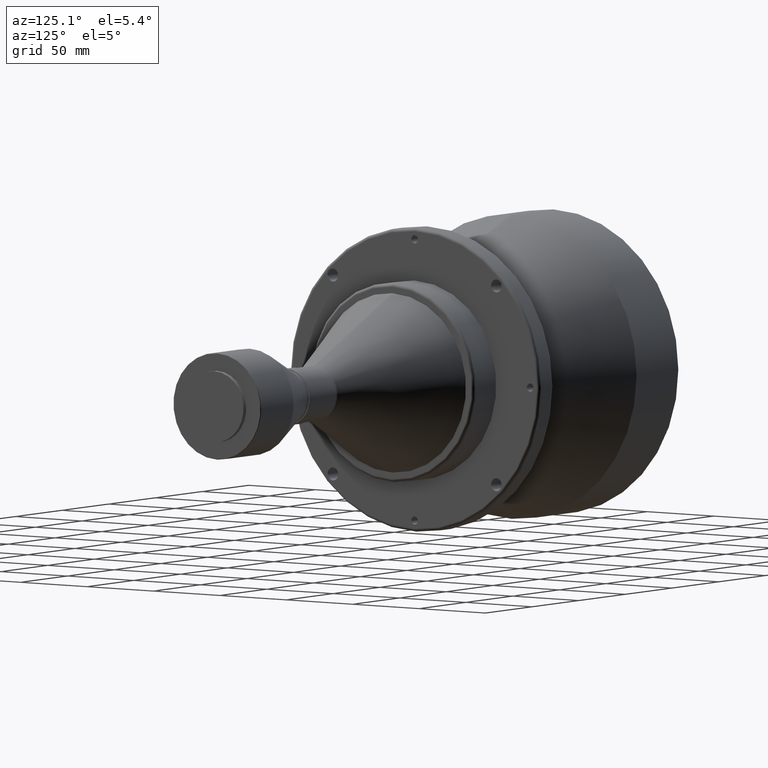
[diagram: clean part render]
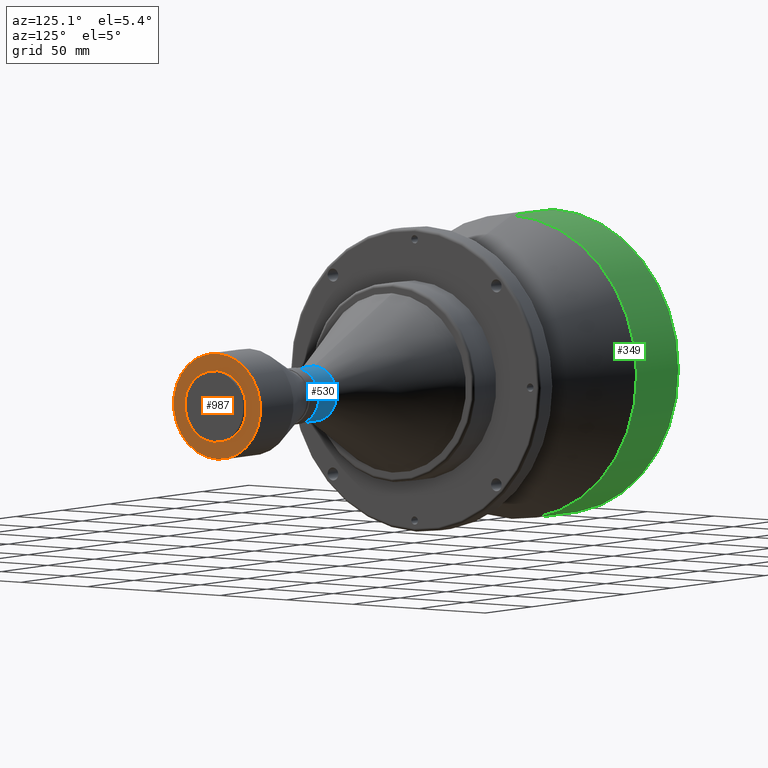
[diagram: same view with three faces highlighted in distinct colors, each labeled with its STEP entity id]
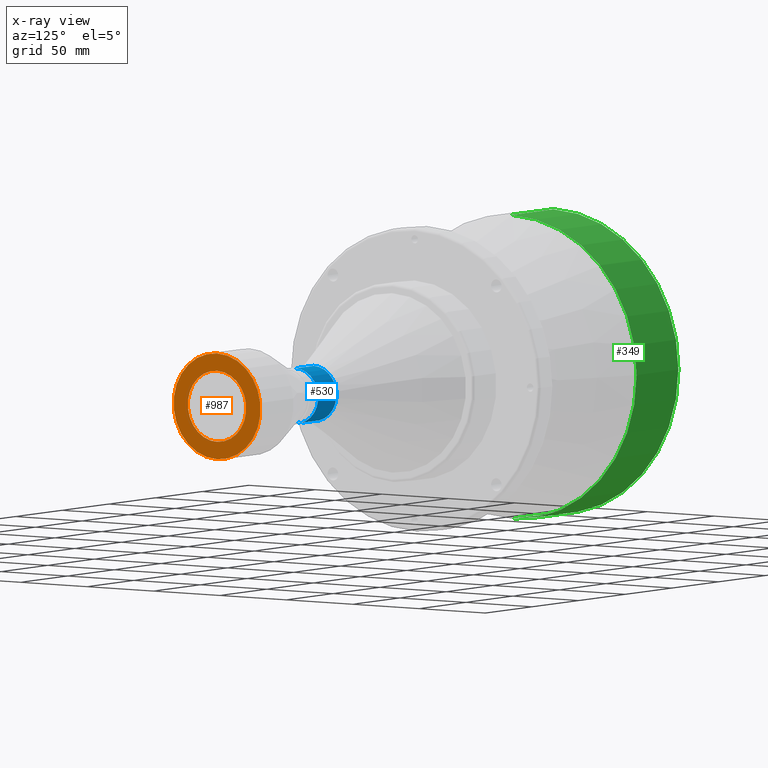
[diagram: x-ray of the same camera — body ghosted, the three highlighted faces saturated]
A machine part, auxiliary view with three faces highlighted in distinct colors.
The next image is the same camera in x-ray (body ghosted, the three faces saturated) — at least one of them is partly hidden behind the body in this view.
Their STEP definitions:

[orange] entity #987 — the highlighted planar face has unit normal (-1, 0, -0).
#36 = AXIS2_PLACEMENT_3D ( 'NONE', #1846, #1444, #583 ) ;
#62 = FACE_BOUND ( 'NONE', #481, .T. ) ;
#69 = AXIS2_PLACEMENT_3D ( 'NONE', #1262, #1828, #1822 ) ;
#100 = DIRECTION ( 'NONE',  ( -1.000000000000000000, -0.0000000000000000000, -0.0000000000000000000 ) ) ;
#102 = AXIS2_PLACEMENT_3D ( 'NONE', #251, #100, #1682 ) ;
#220 = CIRCLE ( 'NONE', #36, 22.00000000000000000 ) ;
#251 = CARTESIAN_POINT ( 'NONE',  ( 360.6999999999999900, 0.0000000000000000000, 0.0000000000000000000 ) ) ;
#364 = EDGE_LOOP ( 'NONE', ( #1723, #1151 ) ) ;
#459 = AXIS2_PLACEMENT_3D ( 'NONE', #1559, #1568, #684 ) ;
#481 = EDGE_LOOP ( 'NONE', ( #817, #1077 ) ) ;
#531 = AXIS2_PLACEMENT_3D ( 'NONE', #1816, #1252, #668 ) ;
#550 = CARTESIAN_POINT ( 'NONE',  ( 360.6999999999999900, 4.022964735199055000E-015, -32.70000000000000300 ) ) ;
#560 = PLANE ( 'NONE',  #459 ) ;
#569 = CARTESIAN_POINT ( 'NONE',  ( 360.6999999999999900, 0.0000000000000000000, 32.70000000000000300 ) ) ;
#583 = DIRECTION ( 'NONE',  ( 0.0000000000000000000, 0.0000000000000000000, 1.000000000000000000 ) ) ;
#591 = EDGE_CURVE ( 'NONE', #992, #1201, #945, .T. ) ;
#631 = FACE_OUTER_BOUND ( 'NONE', #364, .T. ) ;
#668 = DIRECTION ( 'NONE',  ( 0.0000000000000000000, 0.0000000000000000000, 1.000000000000000000 ) ) ;
#684 = DIRECTION ( 'NONE',  ( -0.0000000000000000000, 0.0000000000000000000, 1.000000000000000000 ) ) ;
#739 = CIRCLE ( 'NONE', #531, 32.70000000000000300 ) ;
#772 = VERTEX_POINT ( 'NONE', #1189 ) ;
#817 = ORIENTED_EDGE ( 'NONE', *, *, #1308, .T. ) ;
#913 = CIRCLE ( 'NONE', #69, 22.00000000000000000 ) ;
#945 = CIRCLE ( 'NONE', #102, 32.70000000000000300 ) ;
#987 = ADVANCED_FACE ( 'NONE', ( #631, #62 ), #560, .F. ) ;
#992 = VERTEX_POINT ( 'NONE', #550 ) ;
#1077 = ORIENTED_EDGE ( 'NONE', *, *, #1179, .T. ) ;
#1151 = ORIENTED_EDGE ( 'NONE', *, *, #591, .F. ) ;
#1179 = EDGE_CURVE ( 'NONE', #772, #1413, #220, .T. ) ;
#1189 = CARTESIAN_POINT ( 'NONE',  ( 360.6999999999999900, 2.694222958124176800E-015, -22.00000000000000000 ) ) ;
#1201 = VERTEX_POINT ( 'NONE', #569 ) ;
#1252 = DIRECTION ( 'NONE',  ( -1.000000000000000000, -0.0000000000000000000, -0.0000000000000000000 ) ) ;
#1262 = CARTESIAN_POINT ( 'NONE',  ( 360.6999999999999900, 0.0000000000000000000, 0.0000000000000000000 ) ) ;
#1308 = EDGE_CURVE ( 'NONE', #1413, #772, #913, .T. ) ;
#1413 = VERTEX_POINT ( 'NONE', #1447 ) ;
#1444 = DIRECTION ( 'NONE',  ( -1.000000000000000000, -0.0000000000000000000, -0.0000000000000000000 ) ) ;
#1447 = CARTESIAN_POINT ( 'NONE',  ( 360.6999999999999900, 0.0000000000000000000, 22.00000000000000000 ) ) ;
#1559 = CARTESIAN_POINT ( 'NONE',  ( 360.6999999999999900, 32.70000000000000300, 0.0000000000000000000 ) ) ;
#1568 = DIRECTION ( 'NONE',  ( -1.000000000000000000, 0.0000000000000000000, -0.0000000000000000000 ) ) ;
#1682 = DIRECTION ( 'NONE',  ( 0.0000000000000000000, 0.0000000000000000000, 1.000000000000000000 ) ) ;
#1723 = ORIENTED_EDGE ( 'NONE', *, *, #1747, .F. ) ;
#1747 = EDGE_CURVE ( 'NONE', #1201, #992, #739, .T. ) ;
#1816 = CARTESIAN_POINT ( 'NONE',  ( 360.6999999999999900, 0.0000000000000000000, 0.0000000000000000000 ) ) ;
#1822 = DIRECTION ( 'NONE',  ( 0.0000000000000000000, 0.0000000000000000000, 1.000000000000000000 ) ) ;
#1828 = DIRECTION ( 'NONE',  ( -1.000000000000000000, -0.0000000000000000000, -0.0000000000000000000 ) ) ;
#1846 = CARTESIAN_POINT ( 'NONE',  ( 360.6999999999999900, 0.0000000000000000000, 0.0000000000000000000 ) ) ;

[blue] entity #530 — the highlighted cylindrical surface (edge-blend (fillet) strip) has radius 17 mm, axis along (-1, -0, -0).
#190 = CARTESIAN_POINT ( 'NONE',  ( 276.4999999999999400, 0.0000000000000000000, 17.00000000000000000 ) ) ;
#210 = DIRECTION ( 'NONE',  ( -1.000000000000000000, -0.0000000000000000000, -0.0000000000000000000 ) ) ;
#255 = DIRECTION ( 'NONE',  ( -1.000000000000000000, -0.0000000000000000000, -0.0000000000000000000 ) ) ;
#379 = LINE ( 'NONE', #1346, #1466 ) ;
#380 = CARTESIAN_POINT ( 'NONE',  ( -15.38440440350833200, 0.0000000000000000000, 0.0000000000000000000 ) ) ;
#395 = EDGE_CURVE ( 'NONE', #1488, #482, #379, .T. ) ;
#397 = AXIS2_PLACEMENT_3D ( 'NONE', #380, #689, #1701 ) ;
#405 = CARTESIAN_POINT ( 'NONE',  ( 256.9388755880296500, 0.0000000000000000000, 0.0000000000000000000 ) ) ;
#466 = CIRCLE ( 'NONE', #1268, 17.00000000000000000 ) ;
#482 = VERTEX_POINT ( 'NONE', #1365 ) ;
#506 = AXIS2_PLACEMENT_3D ( 'NONE', #405, #255, #1556 ) ;
#530 = ADVANCED_FACE ( 'NONE', ( #1283 ), #813, .T. ) ;
#626 = ORIENTED_EDGE ( 'NONE', *, *, #1218, .F. ) ;
#689 = DIRECTION ( 'NONE',  ( -1.000000000000000000, -0.0000000000000000000, -0.0000000000000000000 ) ) ;
#704 = CARTESIAN_POINT ( 'NONE',  ( 276.4999999999999400, 2.081899558550500700E-015, -17.00000000000000000 ) ) ;
#725 = VERTEX_POINT ( 'NONE', #1172 ) ;
#740 = EDGE_CURVE ( 'NONE', #1652, #1488, #466, .T. ) ;
#742 = DIRECTION ( 'NONE',  ( 0.0000000000000000000, 0.0000000000000000000, 1.000000000000000000 ) ) ;
#765 = CARTESIAN_POINT ( 'NONE',  ( 276.4999999999999400, 0.0000000000000000000, 0.0000000000000000000 ) ) ;
#813 = CYLINDRICAL_SURFACE ( 'NONE', #397, 17.00000000000000400 ) ;
#860 = EDGE_LOOP ( 'NONE', ( #1264, #954, #1378, #626 ) ) ;
#936 = CARTESIAN_POINT ( 'NONE',  ( -15.38440440350833200, 0.0000000000000000000, 17.00000000000000400 ) ) ;
#954 = ORIENTED_EDGE ( 'NONE', *, *, #395, .T. ) ;
#1004 = CIRCLE ( 'NONE', #506, 17.00000000000000700 ) ;
#1172 = CARTESIAN_POINT ( 'NONE',  ( 256.9388755880296500, 0.0000000000000000000, 17.00000000000000700 ) ) ;
#1218 = EDGE_CURVE ( 'NONE', #1652, #725, #1529, .T. ) ;
#1264 = ORIENTED_EDGE ( 'NONE', *, *, #740, .T. ) ;
#1268 = AXIS2_PLACEMENT_3D ( 'NONE', #765, #1310, #742 ) ;
#1283 = FACE_OUTER_BOUND ( 'NONE', #860, .T. ) ;
#1310 = DIRECTION ( 'NONE',  ( -1.000000000000000000, -0.0000000000000000000, -0.0000000000000000000 ) ) ;
#1346 = CARTESIAN_POINT ( 'NONE',  ( -15.38440440350833200, 2.081899558550500700E-015, -17.00000000000000400 ) ) ;
#1352 = VECTOR ( 'NONE', #210, 1000.000000000000000 ) ;
#1365 = CARTESIAN_POINT ( 'NONE',  ( 256.9388755880296500, 2.081899558550501100E-015, -17.00000000000000700 ) ) ;
#1378 = ORIENTED_EDGE ( 'NONE', *, *, #1792, .F. ) ;
#1466 = VECTOR ( 'NONE', #1644, 1000.000000000000000 ) ;
#1488 = VERTEX_POINT ( 'NONE', #704 ) ;
#1529 = LINE ( 'NONE', #936, #1352 ) ;
#1556 = DIRECTION ( 'NONE',  ( 0.0000000000000000000, 0.0000000000000000000, 1.000000000000000000 ) ) ;
#1644 = DIRECTION ( 'NONE',  ( -1.000000000000000000, -0.0000000000000000000, -0.0000000000000000000 ) ) ;
#1652 = VERTEX_POINT ( 'NONE', #190 ) ;
#1701 = DIRECTION ( 'NONE',  ( 0.0000000000000000000, 0.0000000000000000000, 1.000000000000000000 ) ) ;
#1792 = EDGE_CURVE ( 'NONE', #725, #482, #1004, .T. ) ;

[green] entity #349 — the highlighted cylindrical surface (partial cylindrical patch) has radius 94 mm, axis along (-1, -0, -0).
#218 = FACE_OUTER_BOUND ( 'NONE', #390, .T. ) ;
#236 = VECTOR ( 'NONE', #1651, 1000.000000000000000 ) ;
#243 = ORIENTED_EDGE ( 'NONE', *, *, #513, .T. ) ;
#248 = AXIS2_PLACEMENT_3D ( 'NONE', #312, #1759, #602 ) ;
#296 = CARTESIAN_POINT ( 'NONE',  ( -15.38440440350833200, 0.0000000000000000000, 0.0000000000000000000 ) ) ;
#312 = CARTESIAN_POINT ( 'NONE',  ( 0.3000000000000016500, 0.0000000000000000000, 0.0000000000000000000 ) ) ;
#319 = DIRECTION ( 'NONE',  ( -1.000000000000000000, -0.0000000000000000000, -0.0000000000000000000 ) ) ;
#349 = ADVANCED_FACE ( 'NONE', ( #218 ), #1811, .T. ) ;
#390 = EDGE_LOOP ( 'NONE', ( #243, #1222, #1195, #1065 ) ) ;
#419 = CARTESIAN_POINT ( 'NONE',  ( 45.00000000000000000, 1.151167991198512300E-014, -94.00000000000001400 ) ) ;
#453 = VERTEX_POINT ( 'NONE', #1520 ) ;
#469 = LINE ( 'NONE', #507, #236 ) ;
#471 = EDGE_CURVE ( 'NONE', #1291, #453, #469, .T. ) ;
#507 = CARTESIAN_POINT ( 'NONE',  ( -15.38440440350833200, 1.151167991198512300E-014, -94.00000000000001400 ) ) ;
#513 = EDGE_CURVE ( 'NONE', #1453, #1291, #1081, .T. ) ;
#547 = DIRECTION ( 'NONE',  ( 0.0000000000000000000, 0.0000000000000000000, 1.000000000000000000 ) ) ;
#602 = DIRECTION ( 'NONE',  ( 0.0000000000000000000, 0.0000000000000000000, 1.000000000000000000 ) ) ;
#679 = AXIS2_PLACEMENT_3D ( 'NONE', #296, #1034, #1186 ) ;
#694 = EDGE_CURVE ( 'NONE', #1453, #1837, #1149, .T. ) ;
#868 = AXIS2_PLACEMENT_3D ( 'NONE', #1388, #1408, #547 ) ;
#1034 = DIRECTION ( 'NONE',  ( -1.000000000000000000, -0.0000000000000000000, -0.0000000000000000000 ) ) ;
#1065 = ORIENTED_EDGE ( 'NONE', *, *, #694, .F. ) ;
#1081 = CIRCLE ( 'NONE', #868, 94.00000000000001400 ) ;
#1136 = CIRCLE ( 'NONE', #248, 94.00000000000001400 ) ;
#1146 = CARTESIAN_POINT ( 'NONE',  ( 45.00000000000000000, 0.0000000000000000000, 94.00000000000001400 ) ) ;
#1149 = LINE ( 'NONE', #1739, #1326 ) ;
#1186 = DIRECTION ( 'NONE',  ( 0.0000000000000000000, 0.0000000000000000000, 1.000000000000000000 ) ) ;
#1195 = ORIENTED_EDGE ( 'NONE', *, *, #1527, .F. ) ;
#1222 = ORIENTED_EDGE ( 'NONE', *, *, #471, .T. ) ;
#1291 = VERTEX_POINT ( 'NONE', #419 ) ;
#1326 = VECTOR ( 'NONE', #319, 1000.000000000000000 ) ;
#1388 = CARTESIAN_POINT ( 'NONE',  ( 45.00000000000000000, 0.0000000000000000000, 0.0000000000000000000 ) ) ;
#1408 = DIRECTION ( 'NONE',  ( -1.000000000000000000, -0.0000000000000000000, -0.0000000000000000000 ) ) ;
#1453 = VERTEX_POINT ( 'NONE', #1146 ) ;
#1520 = CARTESIAN_POINT ( 'NONE',  ( 0.3000000000000016500, 1.151167991198512300E-014, -94.00000000000001400 ) ) ;
#1527 = EDGE_CURVE ( 'NONE', #1837, #453, #1136, .T. ) ;
#1651 = DIRECTION ( 'NONE',  ( -1.000000000000000000, -0.0000000000000000000, -0.0000000000000000000 ) ) ;
#1722 = CARTESIAN_POINT ( 'NONE',  ( 0.3000000000000016500, 0.0000000000000000000, 94.00000000000001400 ) ) ;
#1739 = CARTESIAN_POINT ( 'NONE',  ( -15.38440440350833200, 0.0000000000000000000, 94.00000000000001400 ) ) ;
#1759 = DIRECTION ( 'NONE',  ( -1.000000000000000000, -0.0000000000000000000, -0.0000000000000000000 ) ) ;
#1811 = CYLINDRICAL_SURFACE ( 'NONE', #679, 94.00000000000001400 ) ;
#1837 = VERTEX_POINT ( 'NONE', #1722 ) ;